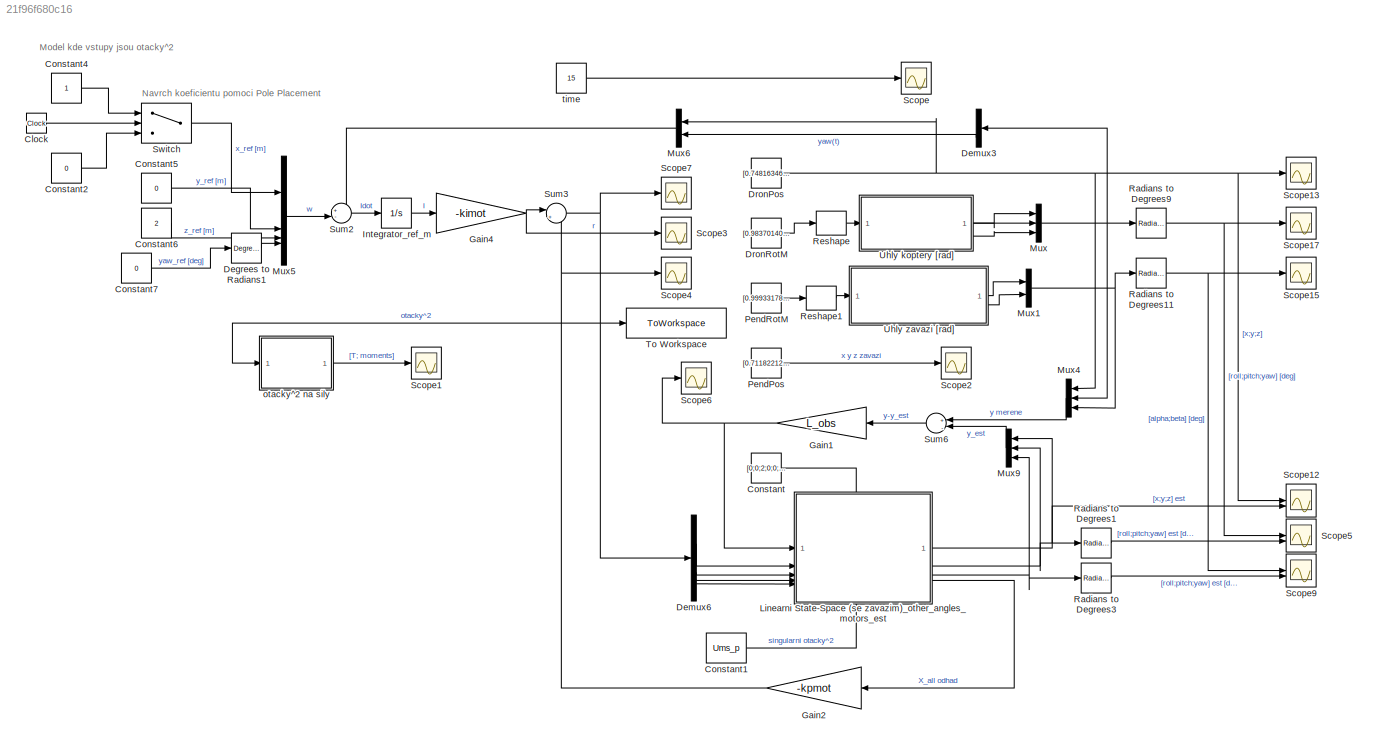
MODEL slx_21f96f680c16
KIND model
CONFIG AbsTol = auto
CONFIG EnableMultiTasking = off
CONFIG FixedStep = 0.05
CONFIG MaxStep = auto
CONFIG MinStep = auto
CONFIG RelTol = 1e-3
CONFIG SampleTimeConstraint = Unconstrained
CONFIG SolverName = ode4
CONFIG StartTime = 0.0
CONFIG StopTime = 15
BLOCK [Clock] Clock
BLOCK [Constant] Constant
  Value = [0;0;2;0;0;0;0;0;0;0;0;0;0;0;0;0]
BLOCK [Constant] Constant1
  Value = Ums_p
BLOCK [Constant] Constant2
  Value = 0
BLOCK [Constant] Constant4
BLOCK [Constant] Constant5
  Value = 0
BLOCK [Constant] Constant6
  Value = 2
BLOCK [Constant] Constant7
  Value = 0
BLOCK [Reference] Degrees to Radians1  REF=simulink_extras/Transformations/Degrees to
Radians
  SourceBlock = simulink_extras/Transformations/Degrees to\nRadians
  SourceType = DegreesToRadians
BLOCK [Demux] Demux3
  Outputs = 3
BLOCK [Demux] Demux6
BLOCK [Constant] DronPos
  SampleTime = -1
  Value = [0.748163461501582;0.260905012894536;2.14587322906247]
BLOCK [Constant] DronRotM
  SampleTime = -1
  Value = [0.983701405952573 -0.176324766765645 0.0352295408992504;0.176869458002762 0.984148861777697 -0.0129696833991238;-0.0323842361765733 0.0189893255990144 0.999295084927648]
BLOCK [Gain] Gain1
  Gain = L_obs
  Multiplication = Matrix(K*u)
BLOCK [Gain] Gain2
  Gain = -kpmot
  Multiplication = Matrix(K*u)
BLOCK [Gain] Gain4
  Gain = -kimot
  Multiplication = Matrix(K*u)
BLOCK [Integrator] Integrator_ref_m
  InitialCondition = [-0.703382796450144;0.248327824218094;-3.76311760350756;0.429355767151778]
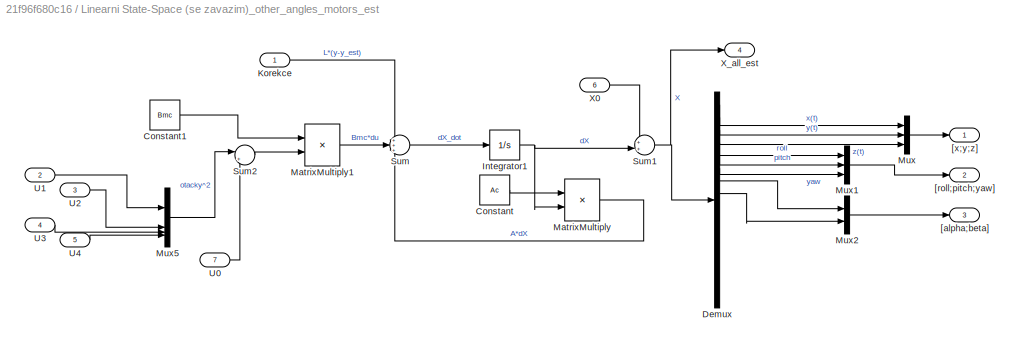
BLOCK [SubSystem] Linearni State-Space (se zavazim)_other_angles_motors_est
  PortSchema = {"entries":[{"content":{"sides":[{"content":{"connectorIds":["In1","In2","In3","In4","In5"]},"type":"ConnectorPlacement.EquallySpacedRectSide","uuid":"a4429057-2b47-419f-9dfc-835e85a09133"},{"content":{"connectorIds":["Out1","Out2","Out3","Out4"],"side":"RIGHT"},"type":"ConnectorPlacement.EquallySpacedRectSide","uuid":"1ad51c71-1e63-4d5a-846d-5c19a5472817"},{"content":{"connectorIds":["In6"],"side...<+439ch>
BLOCK [Constant] Linearni State-Space (se zavazim)_other_angles_motors_est/Constant
  Value = Ac
BLOCK [Constant] Linearni State-Space (se zavazim)_other_angles_motors_est/Constant1
  Value = Bmc
BLOCK [Demux] Linearni State-Space (se zavazim)_other_angles_motors_est/Demux
  Outputs = 16
BLOCK [Integrator] Linearni State-Space (se zavazim)_other_angles_motors_est/Integrator1
  InitialCondition = [0;0;0;0;0;0;0;0;0;0;0;0;0;0;0;0]
BLOCK [Inport] Linearni State-Space (se zavazim)_other_angles_motors_est/Korekce
BLOCK [Product] Linearni State-Space (se zavazim)_other_angles_motors_est/MatrixMultiply
  Multiplication = Matrix(*)
BLOCK [Product] Linearni State-Space (se zavazim)_other_angles_motors_est/MatrixMultiply1
  Multiplication = Matrix(*)
BLOCK [Mux] Linearni State-Space (se zavazim)_other_angles_motors_est/Mux
  DisplayOption = bar
  Inputs = 3
BLOCK [Mux] Linearni State-Space (se zavazim)_other_angles_motors_est/Mux1
  DisplayOption = bar
  Inputs = 3
BLOCK [Mux] Linearni State-Space (se zavazim)_other_angles_motors_est/Mux2
  DisplayOption = bar
  Inputs = 2
BLOCK [Mux] Linearni State-Space (se zavazim)_other_angles_motors_est/Mux5
  DisplayOption = bar
BLOCK [Sum] Linearni State-Space (se zavazim)_other_angles_motors_est/Sum
  Inputs = +++
BLOCK [Sum] Linearni State-Space (se zavazim)_other_angles_motors_est/Sum1
  Inputs = ++|
BLOCK [Sum] Linearni State-Space (se zavazim)_other_angles_motors_est/Sum2
  Inputs = |+-
BLOCK [Inport] Linearni State-Space (se zavazim)_other_angles_motors_est/U0
  Port = 7
BLOCK [Inport] Linearni State-Space (se zavazim)_other_angles_motors_est/U1
  Port = 2
BLOCK [Inport] Linearni State-Space (se zavazim)_other_angles_motors_est/U2
  Port = 3
BLOCK [Inport] Linearni State-Space (se zavazim)_other_angles_motors_est/U3
  Port = 4
BLOCK [Inport] Linearni State-Space (se zavazim)_other_angles_motors_est/U4
  Port = 5
BLOCK [Inport] Linearni State-Space (se zavazim)_other_angles_motors_est/X0
  Port = 6
BLOCK [Outport] Linearni State-Space (se zavazim)_other_angles_motors_est/X_all_est
  Port = 4
BLOCK [Outport] Linearni State-Space (se zavazim)_other_angles_motors_est/[alpha;beta]
  Port = 3
BLOCK [Outport] Linearni State-Space (se zavazim)_other_angles_motors_est/[roll;pitch;yaw]
  Port = 2
BLOCK [Outport] Linearni State-Space (se zavazim)_other_angles_motors_est/[x;y;z]
BLOCK [Mux] Mux
  DisplayOption = bar
  Inputs = 3
BLOCK [Mux] Mux1
  DisplayOption = bar
  Inputs = 2
BLOCK [Mux] Mux4
  DisplayOption = bar
  Inputs = 3
BLOCK [Mux] Mux5
  DisplayOption = bar
BLOCK [Mux] Mux6
  DisplayOption = bar
  Inputs = 2
BLOCK [Mux] Mux9
  DisplayOption = bar
  Inputs = 3
BLOCK [Constant] PendPos
  SampleTime = -1
  Value = [0.711822124584791;0.273196484892721;1.14660938655279]
BLOCK [Constant] PendRotM
  SampleTime = -1
  Value = [0.999331785113163 0.00391030608054334 0.0363413369167912;-0.00346561445020981 0.999918451291206 -0.0122914719981849;-0.036386436745383 0.0121573135912558 0.999263842509686]
BLOCK [Reference] Radians to Degrees1  REF=simulink_extras/Transformations/Radians
to Degrees
  SourceBlock = simulink_extras/Transformations/Radians\nto Degrees
  SourceType = RadiansToDegrees
BLOCK [Reference] Radians to Degrees11  REF=simulink_extras/Transformations/Radians
to Degrees
  SourceBlock = simulink_extras/Transformations/Radians\nto Degrees
  SourceType = RadiansToDegrees
BLOCK [Reference] Radians to Degrees3  REF=simulink_extras/Transformations/Radians
to Degrees
  SourceBlock = simulink_extras/Transformations/Radians\nto Degrees
  SourceType = RadiansToDegrees
BLOCK [Reference] Radians to Degrees9  REF=simulink_extras/Transformations/Radians
to Degrees
  SourceBlock = simulink_extras/Transformations/Radians\nto Degrees
  SourceType = RadiansToDegrees
BLOCK [Reshape] Reshape
  OutputDimensionality = Customize
  OutputDimensions = [3,3]
BLOCK [Reshape] Reshape1
  OutputDimensionality = Customize
  OutputDimensions = [3,3]
BLOCK [Scope] Scope
  Floating = off
  NumInputPorts = 1
  ScopeSpecificationString = Simulink.scopes.TimeScopeBlockCfg('CurrentConfiguration', extmgr.ConfigurationSet(extmgr.Configuration('Core','General UI',true),extmgr.Configuration('Core','Source UI',true),extmgr.Configuration('Sources','WiredSimulink',true,'DataLoggingVariableName','ScopeData1'),extmgr.Configuration('Visuals','Time Domain',true,'SerializedDisplays',{struct('MinYLimReal','-1.875','MaxYLimReal','16.875','YLabelR...<+1517ch>
BLOCK [Scope] Scope1
  Floating = off
  NumInputPorts = 1
  ScopeSpecificationString = Simulink.scopes.TimeScopeBlockCfg('CurrentConfiguration', extmgr.ConfigurationSet(extmgr.Configuration('Core','General UI',true),extmgr.Configuration('Core','Source UI',true),extmgr.Configuration('Sources','WiredSimulink',true,'DataLoggingVariableName','ScopeData1'),extmgr.Configuration('Visuals','Time Domain',true,'SerializedDisplays',{struct('MinYLimReal','-3.74791','MaxYLimReal','33.68681','YLa...<+1590ch>
BLOCK [Scope] Scope12
  Floating = off
  NumInputPorts = 2
  ScopeSpecificationString = Simulink.scopes.TimeScopeBlockCfg('CurrentConfiguration', extmgr.ConfigurationSet(extmgr.Configuration('Core','General UI',true),extmgr.Configuration('Core','Source UI',true),extmgr.Configuration('Sources','WiredSimulink',true,'DataLoggingVariableName','ScopeData1'),extmgr.Configuration('Visuals','Time Domain',true,'SerializedDisplays',{struct('MinYLimReal','-0.5942','MaxYLimReal','2.45034','YLabe...<+1735ch>
BLOCK [Scope] Scope13
  Floating = off
  NumInputPorts = 1
  ScopeSpecificationString = Simulink.scopes.TimeScopeBlockCfg('CurrentConfiguration', extmgr.ConfigurationSet(extmgr.Configuration('Core','General UI',true,'FigureColor',[1 1 1]),extmgr.Configuration('Core','Source UI',true),extmgr.Configuration('Sources','WiredSimulink',true,'DataLoggingVariableName','ScopeData2'),extmgr.Configuration('Visuals','Time Domain',true,'SerializedDisplays',{struct('MinYLimReal','-0.59418','MaxYLi...<+1879ch>
BLOCK [Scope] Scope15
  Floating = off
  NumInputPorts = 1
  ScopeSpecificationString = Simulink.scopes.TimeScopeBlockCfg('CurrentConfiguration', extmgr.ConfigurationSet(extmgr.Configuration('Core','General UI',true,'FigureColor',[1 1 1]),extmgr.Configuration('Core','Source UI',true),extmgr.Configuration('Sources','WiredSimulink',true,'DataLoggingVariableName','ScopeData4'),extmgr.Configuration('Visuals','Time Domain',true,'SerializedDisplays',{struct('MinYLimReal','-106.39256','MaxY...<+1899ch>
BLOCK [Scope] Scope17
  Floating = off
  NumInputPorts = 1
  ScopeSpecificationString = Simulink.scopes.TimeScopeBlockCfg('CurrentConfiguration', extmgr.ConfigurationSet(extmgr.Configuration('Core','General UI',true,'FigureColor',[1 1 1]),extmgr.Configuration('Core','Source UI',true),extmgr.Configuration('Sources','WiredSimulink',true,'DataLoggingVariableName','ScopeData6'),extmgr.Configuration('Visuals','Time Domain',true,'SerializedDisplays',{struct('MinYLimReal','-14.18973','MaxYL...<+1930ch>
BLOCK [Scope] Scope2
  Floating = off
  NumInputPorts = 1
  ScopeSpecificationString = Simulink.scopes.TimeScopeBlockCfg('CurrentConfiguration', extmgr.ConfigurationSet(extmgr.Configuration('Core','General UI',true),extmgr.Configuration('Core','Source UI',true),extmgr.Configuration('Sources','WiredSimulink',true,'DataLoggingVariableName','ScopeData2'),extmgr.Configuration('Visuals','Time Domain',true,'SerializedDisplays',{struct('MinYLimReal','-0.48237','MaxYLimReal','2.70228','YLab...<+2001ch>
BLOCK [Scope] Scope3
  Floating = off
  NumInputPorts = 1
  ScopeSpecificationString = Simulink.scopes.TimeScopeBlockCfg('CurrentConfiguration', extmgr.ConfigurationSet(extmgr.Configuration('Core','General UI',true),extmgr.Configuration('Core','Source UI',true),extmgr.Configuration('Sources','WiredSimulink',true,'DataLoggingVariableName','ScopeData1'),extmgr.Configuration('Visuals','Time Domain',true,'SerializedDisplays',{struct('MinYLimReal','-30048.66683','MaxYLimReal','86449.2940...<+1661ch>
BLOCK [Scope] Scope4
  Floating = off
  NumInputPorts = 1
  ScopeSpecificationString = Simulink.scopes.TimeScopeBlockCfg('CurrentConfiguration', extmgr.ConfigurationSet(extmgr.Configuration('Core','General UI',true),extmgr.Configuration('Core','Source UI',true),extmgr.Configuration('Sources','WiredSimulink',true,'DataLoggingVariableName','ScopeData1'),extmgr.Configuration('Visuals','Time Domain',true,'SerializedDisplays',{struct('MinYLimReal','-93198.41428','MaxYLimReal','59383.4201...<+1540ch>
BLOCK [Scope] Scope5
  Floating = off
  NumInputPorts = 2
  ScopeSpecificationString = Simulink.scopes.TimeScopeBlockCfg('CurrentConfiguration', extmgr.ConfigurationSet(extmgr.Configuration('Core','General UI',true),extmgr.Configuration('Core','Source UI',true),extmgr.Configuration('Sources','WiredSimulink',true,'DataLoggingVariableName','ScopeData2'),extmgr.Configuration('Visuals','Time Domain',true,'SerializedDisplays',{struct('MinYLimReal','-23.47893','MaxYLimReal','24.41567','YL...<+1814ch>
BLOCK [Scope] Scope6
  Floating = off
  NumInputPorts = 1
  ScopeSpecificationString = Simulink.scopes.TimeScopeBlockCfg('CurrentConfiguration', extmgr.ConfigurationSet(extmgr.Configuration('Core','General UI',true),extmgr.Configuration('Core','Source UI',true),extmgr.Configuration('Sources','WiredSimulink',true,'DataLoggingVariableName','ScopeData3'),extmgr.Configuration('Visuals','Time Domain',true,'SerializedDisplays',{struct('MinYLimReal','-37.67797','MaxYLimReal','38.21944','YL...<+1692ch>
BLOCK [Scope] Scope7
  Floating = off
  NumInputPorts = 1
  ScopeSpecificationString = Simulink.scopes.TimeScopeBlockCfg('CurrentConfiguration', extmgr.ConfigurationSet(extmgr.Configuration('Core','General UI',true),extmgr.Configuration('Core','Source UI',true),extmgr.Configuration('Sources','WiredSimulink',true,'DataLoggingVariableName','ScopeData7'),extmgr.Configuration('Visuals','Time Domain',true,'SerializedDisplays',{struct('MinYLimReal','2621.15154','MaxYLimReal','3852.37983',...<+1795ch>
BLOCK [Scope] Scope9
  Floating = off
  NumInputPorts = 2
  ScopeSpecificationString = Simulink.scopes.TimeScopeBlockCfg('CurrentConfiguration', extmgr.ConfigurationSet(extmgr.Configuration('Core','General UI',true),extmgr.Configuration('Core','Source UI',true),extmgr.Configuration('Sources','WiredSimulink',true,'DataLoggingVariableName','ScopeData4'),extmgr.Configuration('Visuals','Time Domain',true,'SerializedDisplays',{struct('MinYLimReal','-167.69083','MaxYLimReal','115.92531','...<+1638ch>
BLOCK [Sum] Sum2
  Inputs = +-|
BLOCK [Sum] Sum3
  Inputs = |++
BLOCK [Sum] Sum6
  Inputs = +|-
BLOCK [Switch] Switch
  Criteria = u2 > Threshold
  InputSameDT = off
  SaturateOnIntegerOverflow = off
  Threshold = 5
BLOCK [ToWorkspace] To Workspace
  FixptAsFi = on
  MaxDataPoints = inf
  SampleTime = -1
  VariableName = Rotor_RPS_square
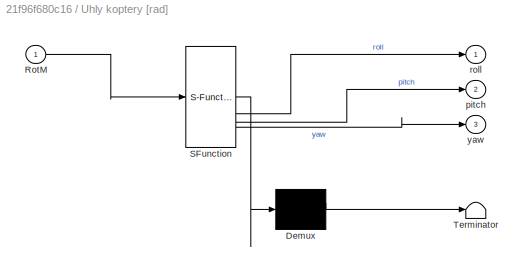
BLOCK [SubSystem] Uhly koptery [rad]
  ErrorFcn = Stateflow.Translate.translate
  PermitHierarchicalResolution = ExplicitOnly
  SFBlockType = MATLAB Function
  TreatAsAtomicUnit = on
BLOCK [Demux] Uhly koptery [rad]/ Demux 
  Outputs = 1
BLOCK [S-Function] Uhly koptery [rad]/ SFunction 
  EnableBusSupport = on
  FunctionName = sf_sfun
  PortCounts = [1 4]
  SFcnIsStateOwnerBlock = off
  SFunctionDeploymentMode = off
  Tag = Stateflow S-Function 3
BLOCK [Terminator] Uhly koptery [rad]/ Terminator 
BLOCK [Inport] Uhly koptery [rad]/RotM
BLOCK [Outport] Uhly koptery [rad]/pitch
  Port = 2
BLOCK [Outport] Uhly koptery [rad]/roll
BLOCK [Outport] Uhly koptery [rad]/yaw
  Port = 3
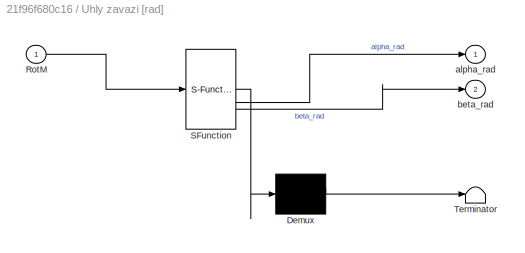
BLOCK [SubSystem] Uhly zavazi [rad]
  ErrorFcn = Stateflow.Translate.translate
  PermitHierarchicalResolution = ExplicitOnly
  SFBlockType = MATLAB Function
  TreatAsAtomicUnit = on
BLOCK [Demux] Uhly zavazi [rad]/ Demux 
  Outputs = 1
BLOCK [S-Function] Uhly zavazi [rad]/ SFunction 
  EnableBusSupport = on
  FunctionName = sf_sfun
  PortCounts = [1 3]
  SFcnIsStateOwnerBlock = off
  SFunctionDeploymentMode = off
  Tag = Stateflow S-Function 1
BLOCK [Terminator] Uhly zavazi [rad]/ Terminator 
BLOCK [Inport] Uhly zavazi [rad]/RotM
BLOCK [Outport] Uhly zavazi [rad]/alpha_rad
BLOCK [Outport] Uhly zavazi [rad]/beta_rad
  Port = 2
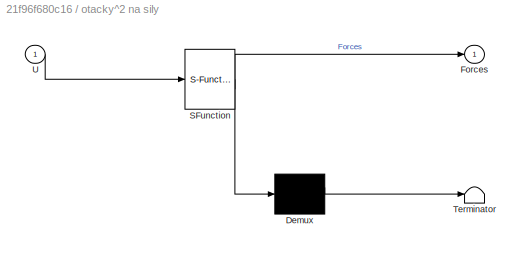
BLOCK [SubSystem] otacky^2 na sily
  ErrorFcn = Stateflow.Translate.translate
  PermitHierarchicalResolution = ExplicitOnly
  SFBlockType = MATLAB Function
  TreatAsAtomicUnit = on
BLOCK [Demux] otacky^2 na sily/ Demux 
  Outputs = 1
BLOCK [S-Function] otacky^2 na sily/ SFunction 
  EnableBusSupport = on
  FunctionName = sf_sfun
  Parameters = b_moment,k_thrust,l
  PortCounts = [1 2]
  SFcnIsStateOwnerBlock = off
  SFunctionDeploymentMode = off
  Tag = Stateflow S-Function 14
BLOCK [Terminator] otacky^2 na sily/ Terminator 
BLOCK [Outport] otacky^2 na sily/Forces
BLOCK [Inport] otacky^2 na sily/U
BLOCK [Constant] time
  SampleTime = -1
  Value = 15
ANNOTATION (root): Navrch koeficientu pomoci Pole Placement
ANNOTATION (root): Model kde vstupy jsou otacky^2
LINE Clock:1 -> Switch:2
LINE Constant1:1 -> Linearni State-Space (se zavazim)_other_angles_motors_est:7
LINE Constant2:1 -> Switch:3
LINE Constant4:1 -> Switch:1
LINE Constant5:1 -> Mux5:2
LINE Constant6:1 -> Mux5:3
LINE Constant7:1 -> Degrees to Radians1:1
LINE Constant:1 -> Linearni State-Space (se zavazim)_other_angles_motors_est:6
LINE Degrees to Radians1:1 -> Mux5:4
LINE Demux3:3 -> Mux6:2
LINE Demux6:1 -> Linearni State-Space (se zavazim)_other_angles_motors_est:2
LINE Demux6:2 -> Linearni State-Space (se zavazim)_other_angles_motors_est:3
LINE Demux6:3 -> Linearni State-Space (se zavazim)_other_angles_motors_est:4
LINE Demux6:4 -> Linearni State-Space (se zavazim)_other_angles_motors_est:5
NET DronPos:1 -> Mux4:1, Mux6:1, Scope12:1, Scope13:1
LINE DronRotM:1 -> Reshape:1
NET Gain1:1 -> Linearni State-Space (se zavazim)_other_angles_motors_est:1, Scope6:1
NET Gain2:1 -> Scope4:1, Sum3:2
NET Gain4:1 -> Scope3:1, Sum3:1
LINE Integrator_ref_m:1 -> Gain4:1
LINE Linearni State-Space (se zavazim)_other_angles_motors_est/Constant1:1 -> Linearni State-Space (se zavazim)_other_angles_motors_est/MatrixMultiply1:1
LINE Linearni State-Space (se zavazim)_other_angles_motors_est/Constant:1 -> Linearni State-Space (se zavazim)_other_angles_motors_est/MatrixMultiply:1
LINE Linearni State-Space (se zavazim)_other_angles_motors_est/Demux:1 -> Linearni State-Space (se zavazim)_other_angles_motors_est/Mux:1
LINE Linearni State-Space (se zavazim)_other_angles_motors_est/Demux:2 -> Linearni State-Space (se zavazim)_other_angles_motors_est/Mux:2
LINE Linearni State-Space (se zavazim)_other_angles_motors_est/Demux:3 -> Linearni State-Space (se zavazim)_other_angles_motors_est/Mux:3
LINE Linearni State-Space (se zavazim)_other_angles_motors_est/Demux:4 -> Linearni State-Space (se zavazim)_other_angles_motors_est/Mux1:1
LINE Linearni State-Space (se zavazim)_other_angles_motors_est/Demux:5 -> Linearni State-Space (se zavazim)_other_angles_motors_est/Mux1:2
LINE Linearni State-Space (se zavazim)_other_angles_motors_est/Demux:6 -> Linearni State-Space (se zavazim)_other_angles_motors_est/Mux1:3
LINE Linearni State-Space (se zavazim)_other_angles_motors_est/Demux:7 -> Linearni State-Space (se zavazim)_other_angles_motors_est/Mux2:1
LINE Linearni State-Space (se zavazim)_other_angles_motors_est/Demux:8 -> Linearni State-Space (se zavazim)_other_angles_motors_est/Mux2:2
NET Linearni State-Space (se zavazim)_other_angles_motors_est/Integrator1:1 -> Linearni State-Space (se zavazim)_other_angles_motors_est/MatrixMultiply:2, Linearni State-Space (se zavazim)_other_angles_motors_est/Sum1:2
LINE Linearni State-Space (se zavazim)_other_angles_motors_est/Korekce:1 -> Linearni State-Space (se zavazim)_other_angles_motors_est/Sum:1
LINE Linearni State-Space (se zavazim)_other_angles_motors_est/MatrixMultiply1:1 -> Linearni State-Space (se zavazim)_other_angles_motors_est/Sum:2
LINE Linearni State-Space (se zavazim)_other_angles_motors_est/MatrixMultiply:1 -> Linearni State-Space (se zavazim)_other_angles_motors_est/Sum:3
LINE Linearni State-Space (se zavazim)_other_angles_motors_est/Mux1:1 -> Linearni State-Space (se zavazim)_other_angles_motors_est/[roll;pitch;yaw]:1
LINE Linearni State-Space (se zavazim)_other_angles_motors_est/Mux2:1 -> Linearni State-Space (se zavazim)_other_angles_motors_est/[alpha;beta]:1
LINE Linearni State-Space (se zavazim)_other_angles_motors_est/Mux5:1 -> Linearni State-Space (se zavazim)_other_angles_motors_est/Sum2:1
LINE Linearni State-Space (se zavazim)_other_angles_motors_est/Mux:1 -> Linearni State-Space (se zavazim)_other_angles_motors_est/[x;y;z]:1
NET Linearni State-Space (se zavazim)_other_angles_motors_est/Sum1:1 -> Linearni State-Space (se zavazim)_other_angles_motors_est/Demux:1, Linearni State-Space (se zavazim)_other_angles_motors_est/X_all_est:1
LINE Linearni State-Space (se zavazim)_other_angles_motors_est/Sum2:1 -> Linearni State-Space (se zavazim)_other_angles_motors_est/MatrixMultiply1:2
LINE Linearni State-Space (se zavazim)_other_angles_motors_est/Sum:1 -> Linearni State-Space (se zavazim)_other_angles_motors_est/Integrator1:1
LINE Linearni State-Space (se zavazim)_other_angles_motors_est/U0:1 -> Linearni State-Space (se zavazim)_other_angles_motors_est/Sum2:2
LINE Linearni State-Space (se zavazim)_other_angles_motors_est/U1:1 -> Linearni State-Space (se zavazim)_other_angles_motors_est/Mux5:1
LINE Linearni State-Space (se zavazim)_other_angles_motors_est/U2:1 -> Linearni State-Space (se zavazim)_other_angles_motors_est/Mux5:2
LINE Linearni State-Space (se zavazim)_other_angles_motors_est/U3:1 -> Linearni State-Space (se zavazim)_other_angles_motors_est/Mux5:3
LINE Linearni State-Space (se zavazim)_other_angles_motors_est/U4:1 -> Linearni State-Space (se zavazim)_other_angles_motors_est/Mux5:4
LINE Linearni State-Space (se zavazim)_other_angles_motors_est/X0:1 -> Linearni State-Space (se zavazim)_other_angles_motors_est/Sum1:1
NET Linearni State-Space (se zavazim)_other_angles_motors_est:1 -> Mux9:1, Scope12:2
NET Linearni State-Space (se zavazim)_other_angles_motors_est:2 -> Mux9:2, Radians to Degrees1:1
NET Linearni State-Space (se zavazim)_other_angles_motors_est:3 -> Mux9:3, Radians to Degrees3:1
LINE Linearni State-Space (se zavazim)_other_angles_motors_est:4 -> Gain2:1
NET Mux1:1 -> Mux4:3, Radians to Degrees11:1
LINE Mux4:1 -> Sum6:1
LINE Mux5:1 -> Sum2:2
LINE Mux6:1 -> Sum2:1
LINE Mux9:1 -> Sum6:2
NET Mux:1 -> Demux3:1, Mux4:2, Radians to Degrees9:1
LINE PendPos:1 -> Scope2:1
LINE PendRotM:1 -> Reshape1:1
NET Radians to Degrees11:1 -> Scope15:1, Scope9:1
LINE Radians to Degrees1:1 -> Scope5:2
LINE Radians to Degrees3:1 -> Scope9:2
NET Radians to Degrees9:1 -> Scope17:1, Scope5:1
LINE Reshape1:1 -> Uhly zavazi [rad]:1
LINE Reshape:1 -> Uhly koptery [rad]:1
LINE Sum2:1 -> Integrator_ref_m:1
NET Sum3:1 -> Demux6:1, Scope7:1, To Workspace:1, otacky^2 na sily:1
LINE Sum6:1 -> Gain1:1
LINE Switch:1 -> Mux5:1
LINE Uhly koptery [rad]:1 -> Mux:1
LINE Uhly koptery [rad]:2 -> Mux:2
LINE Uhly koptery [rad]:3 -> Mux:3
LINE Uhly zavazi [rad]:1 -> Mux1:1
LINE Uhly zavazi [rad]:2 -> Mux1:2
LINE otacky^2 na sily:1 -> Scope1:1
LINE time:1 -> Scope:1
note: NET lines group one-source signal fan-out (src -> all destinations, sorted); 1:1 wires keep LINE
CHART Uhly zavazi [rad] states=1 transitions=1
  STATE_LABEL 'eML_blk_kernel()'
  STATE_LABEL 'SCRIPT:\nfunction [alpha_rad, beta_rad] = pend_orient(RotM)\n% Расчет углов альфа и бета маятника\n\n% Вектор маятника\nrope_vector = RotM * [0; 0; -1];\n\n% Расчет угла альфа\nrope_vector_xz = rope_vector([1, 3]); % Компоненты x и z\nz_axis = [0; -1];\ncos_alpha = dot(rope_vector_xz, z_axis) / (norm(rope_vector_xz) * norm(z_axis));\ncos_alpha = max(-1, min(1, cos_alpha)); % Ограничиваем в диапазоне [-1, 1]\n...<+530ch>'
CHART Uhly koptery [rad] states=1 transitions=1
  STATE_LABEL 'eML_blk_kernel()'
  STATE_LABEL "SCRIPT:\nfunction [roll, pitch, yaw] = quad_attitude(RotM)\n% matice rotace koptery z Python, vuci svetu!!!\n% rotm2eul prevadi na Eulerove uhly\nradians = rotm2eul(RotM, 'ZYX'); % pouzivam poradi ZYX\n\n% roll = kolem x, pitch = kolem y, yaw = kolem z\nyaw = radians(1);\npitch = radians(2);\nroll = radians(3);\nend\n"
CHART otacky^2 na sily states=1 transitions=1
  STATE_LABEL 'eML_blk_kernel()'
  STATE_LABEL 'SCRIPT:\nfunction Forces = fcn(U, l, b_moment, k_thrust)\nU1 = U(1);\nU2 = U(2);\nU3 = U(3);\nU4 = U(4);\n\nT = k_thrust*(U1 + U2 + U3 + U4);\nTau_phi = k_thrust*l*(U1 - U2 - U3 + U4);\nTau_theta = -k_thrust*l*(U1 + U2 - U3 - U4);\nTau_psi = b_moment*(U1 - U2 + U3 - U4);\n\nForces = [T; Tau_phi; Tau_theta; Tau_psi];\n'
CHART  states=0 transitions=0
CHART  states=0 transitions=0
CHART  states=0 transitions=0
